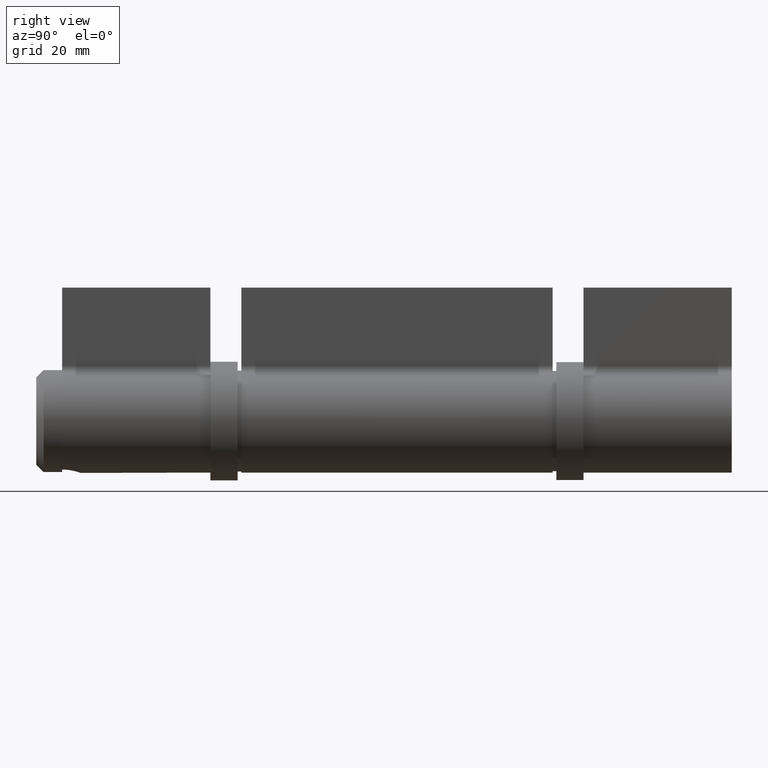
[diagram: clean part render]
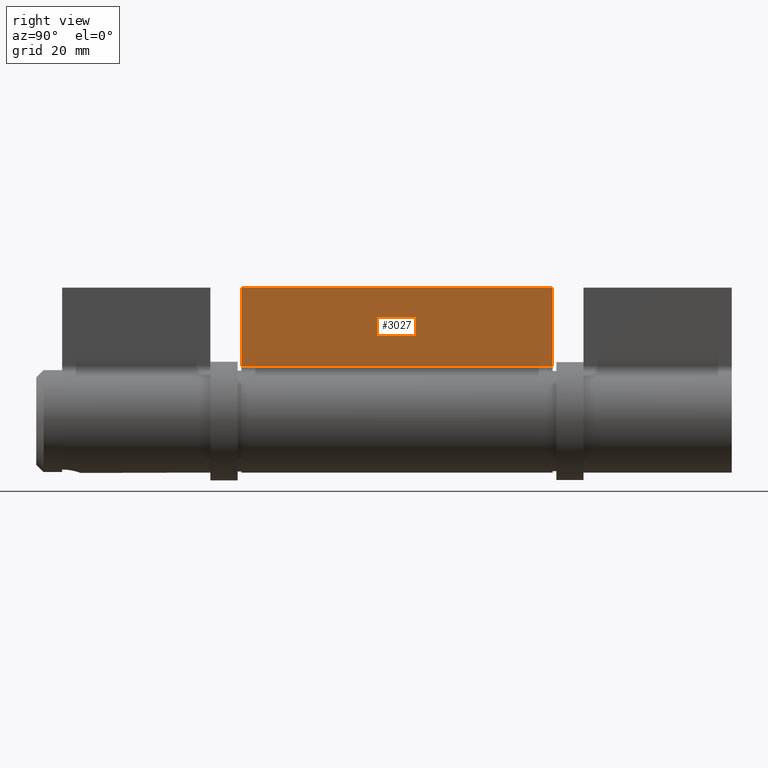
[diagram: same view with one face highlighted and labeled with its STEP entity id]
A machine part, right view. The second image highlights one B-rep face of the part: STEP entity #3027.
In plain terms, the highlighted planar face has unit normal (1, 0, -0).
Its self-contained STEP definition (entity closure, byte-faithful):
#242 = EDGE_CURVE ( 'NONE', #3739, #9604, #1476, .T. ) ;
#591 = VECTOR ( 'NONE', #4918, 1000.000000000000000 ) ;
#917 = CARTESIAN_POINT ( 'NONE',  ( -4.049999999999999822, 42.00000000000000000, -36.00000000000000000 ) ) ;
#969 = AXIS2_PLACEMENT_3D ( 'NONE', #4632, #4770, #3358 ) ;
#1229 = CARTESIAN_POINT ( 'NONE',  ( -4.049999999999999822, 42.00000000000000000, 0.000000000000000000 ) ) ;
#1458 = LINE ( 'NONE', #1229, #9596 ) ;
#1476 = LINE ( 'NONE', #3376, #3064 ) ;
#1804 = FACE_OUTER_BOUND ( 'NONE', #10001, .T. ) ;
#1809 = ORIENTED_EDGE ( 'NONE', *, *, #9567, .T. ) ;
#1898 = ORIENTED_EDGE ( 'NONE', *, *, #1950, .T. ) ;
#1945 = LINE ( 'NONE', #6855, #10188 ) ;
#1950 = EDGE_CURVE ( 'NONE', #7055, #9486, #3304, .T. ) ;
#2827 = DIRECTION ( 'NONE',  ( 0.000000000000000000, 0.000000000000000000, -1.000000000000000000 ) ) ;
#3027 = ADVANCED_FACE ( 'NONE', ( #1804 ), #10103, .T. ) ;
#3064 = VECTOR ( 'NONE', #8192, 1000.000000000000000 ) ;
#3304 = LINE ( 'NONE', #917, #591 ) ;
#3358 = DIRECTION ( 'NONE',  ( 0.000000000000000000, 0.000000000000000000, 1.000000000000000000 ) ) ;
#3376 = CARTESIAN_POINT ( 'NONE',  ( -4.049999999999999822, 42.00000000000000000, -14.81207277864917948 ) ) ;
#3385 = CARTESIAN_POINT ( 'NONE',  ( -4.049999999999999822, -42.00000000000000000, -36.00000000000000000 ) ) ;
#3739 = VERTEX_POINT ( 'NONE', #8943 ) ;
#4315 = CARTESIAN_POINT ( 'NONE',  ( -4.049999999999999822, -42.00000000000000000, -14.81207277864917948 ) ) ;
#4569 = ORIENTED_EDGE ( 'NONE', *, *, #242, .F. ) ;
#4632 = CARTESIAN_POINT ( 'NONE',  ( -4.049999999999999822, 42.00000000000000000, 0.000000000000000000 ) ) ;
#4770 = DIRECTION ( 'NONE',  ( -1.000000000000000000, 0.000000000000000000, 0.000000000000000000 ) ) ;
#4918 = DIRECTION ( 'NONE',  ( -0.000000000000000000, -1.000000000000000000, -0.000000000000000000 ) ) ;
#5902 = CARTESIAN_POINT ( 'NONE',  ( -4.049999999999999822, 42.00000000000000000, -36.00000000000000000 ) ) ;
#6787 = DIRECTION ( 'NONE',  ( 0.000000000000000000, 0.000000000000000000, -1.000000000000000000 ) ) ;
#6835 = ORIENTED_EDGE ( 'NONE', *, *, #9248, .F. ) ;
#6855 = CARTESIAN_POINT ( 'NONE',  ( -4.049999999999999822, -42.00000000000000000, -0.000000000000000000 ) ) ;
#7055 = VERTEX_POINT ( 'NONE', #5902 ) ;
#8192 = DIRECTION ( 'NONE',  ( -0.000000000000000000, -1.000000000000000000, -0.000000000000000000 ) ) ;
#8943 = CARTESIAN_POINT ( 'NONE',  ( -4.049999999999999822, 42.00000000000000000, -14.81207277864917948 ) ) ;
#9248 = EDGE_CURVE ( 'NONE', #9604, #9486, #1945, .T. ) ;
#9486 = VERTEX_POINT ( 'NONE', #3385 ) ;
#9567 = EDGE_CURVE ( 'NONE', #3739, #7055, #1458, .T. ) ;
#9596 = VECTOR ( 'NONE', #2827, 1000.000000000000000 ) ;
#9604 = VERTEX_POINT ( 'NONE', #4315 ) ;
#10001 = EDGE_LOOP ( 'NONE', ( #6835, #4569, #1809, #1898 ) ) ;
#10103 = PLANE ( 'NONE',  #969 ) ;
#10188 = VECTOR ( 'NONE', #6787, 1000.000000000000000 ) ;